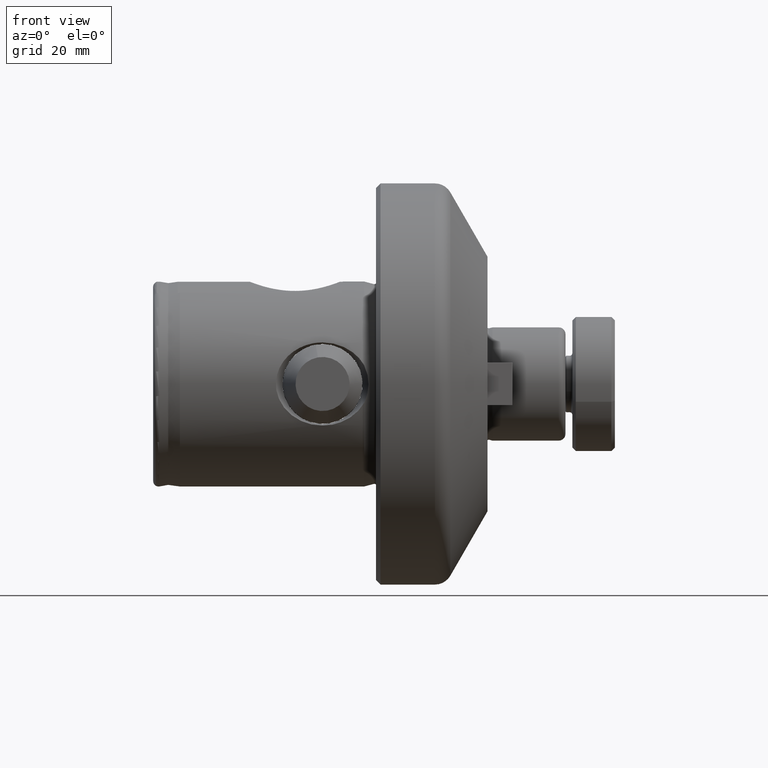
[diagram: clean part render]
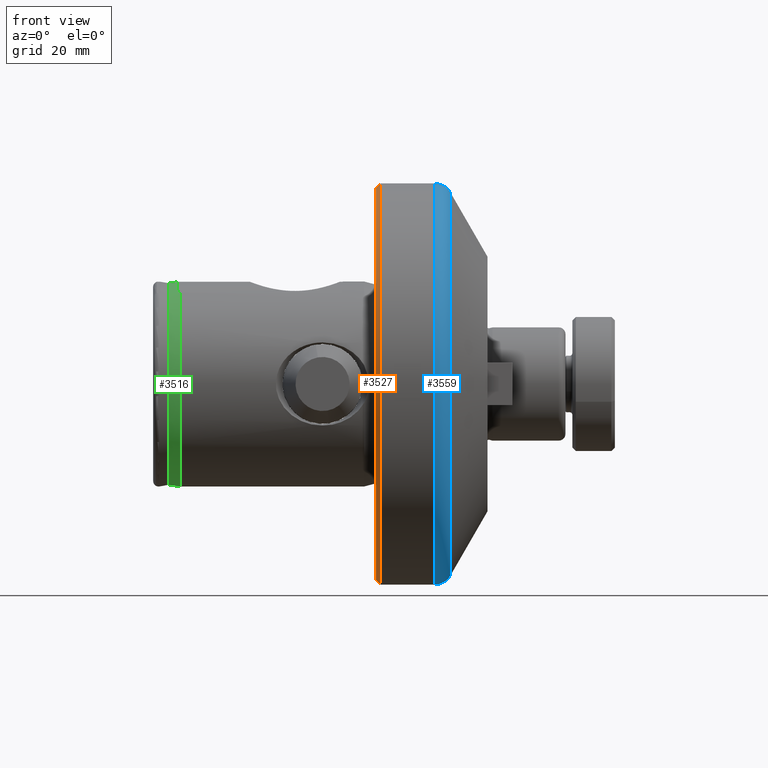
[diagram: same view with three faces highlighted in distinct colors, each labeled with its STEP entity id]
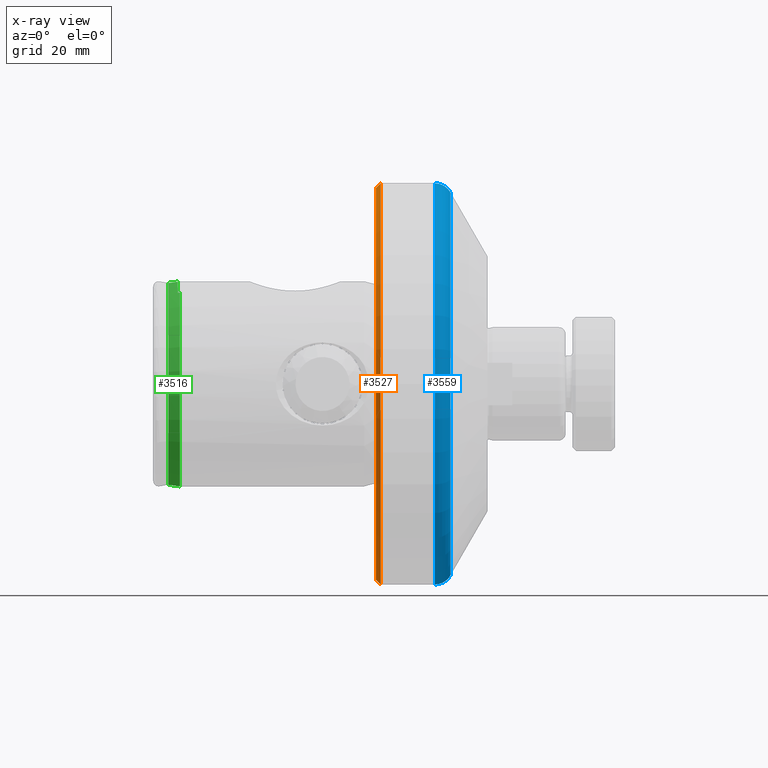
[diagram: x-ray of the same camera — body ghosted, the three highlighted faces saturated]
A machine part, front view with three faces highlighted in distinct colors.
The next image is the same camera in x-ray (body ghosted, the three faces saturated) — at least one of them is partly hidden behind the body in this view.
Their STEP definitions:

[orange] entity #3527 — the highlighted conical surface has half-angle 45 deg.
#628 = ORIENTED_EDGE ( 'NONE', *, *, #2507, .F. ) ;
#659 = ORIENTED_EDGE ( 'NONE', *, *, #2529, .T. ) ;
#701 = ORIENTED_EDGE ( 'NONE', *, *, #2441, .F. ) ;
#745 = ORIENTED_EDGE ( 'NONE', *, *, #2644, .T. ) ;
#1837 = VECTOR ( 'NONE', #4634, 1000.000000000000000 ) ;
#2441 = EDGE_CURVE ( 'NONE', #7696, #7667, #5189, .T. ) ;
#2507 = EDGE_CURVE ( 'NONE', #7667, #7832, #2546, .T. ) ;
#2529 = EDGE_CURVE ( 'NONE', #7840, #7832, #2599, .T. ) ;
#2546 = LINE ( 'NONE', #6354, #2549 ) ;
#2549 = VECTOR ( 'NONE', #6341, 1000.000000000000000 ) ;
#2599 = CIRCLE ( 'NONE', #5781, 45.00000000000000000 ) ;
#2644 = EDGE_CURVE ( 'NONE', #7696, #7840, #4557, .T. ) ;
#3374 = CARTESIAN_POINT ( 'NONE',  ( 50.99999999999999300, 0.0000000000000000000, 0.0000000000000000000 ) ) ;
#3527 = ADVANCED_FACE ( 'NONE', ( #8137 ), #8146, .T. ) ;
#3973 = CARTESIAN_POINT ( 'NONE',  ( 50.99999999999999300, 5.510910596163089600E-015, -45.00000000000000000 ) ) ;
#3989 = CARTESIAN_POINT ( 'NONE',  ( 50.99999999999999300, 0.0000000000000000000, 45.00000000000000000 ) ) ;
#4083 = CARTESIAN_POINT ( 'NONE',  ( 49.99999999999998600, 5.449678256205722000E-015, 44.00000000000000000 ) ) ;
#4093 = CARTESIAN_POINT ( 'NONE',  ( 49.99999999999998600, 0.0000000000000000000, -44.00000000000000000 ) ) ;
#4557 = LINE ( 'NONE', #4853, #1837 ) ;
#4634 = DIRECTION ( 'NONE',  ( 0.7071067811865475700, 0.0000000000000000000, -0.7071067811865474600 ) ) ;
#4853 = CARTESIAN_POINT ( 'NONE',  ( 50.99999999999999300, 0.0000000000000000000, -45.00000000000000000 ) ) ;
#5189 = CIRCLE ( 'NONE', #5734, 44.00000000000000000 ) ;
#5655 = DIRECTION ( 'NONE',  ( 0.0000000000000000000, 0.0000000000000000000, 1.000000000000000000 ) ) ;
#5657 = DIRECTION ( 'NONE',  ( -1.000000000000000000, -0.0000000000000000000, -0.0000000000000000000 ) ) ;
#5734 = AXIS2_PLACEMENT_3D ( 'NONE', #7468, #7466, #7486 ) ;
#5781 = AXIS2_PLACEMENT_3D ( 'NONE', #3374, #5657, #5655 ) ;
#6095 = AXIS2_PLACEMENT_3D ( 'NONE', #7344, #7346, #7239 ) ;
#6341 = DIRECTION ( 'NONE',  ( 0.7071067811865475700, 8.659560562354931600E-017, 0.7071067811865474600 ) ) ;
#6354 = CARTESIAN_POINT ( 'NONE',  ( 50.99999999999999300, 5.510910596163089600E-015, 45.00000000000000000 ) ) ;
#7239 = DIRECTION ( 'NONE',  ( 0.0000000000000000000, 0.0000000000000000000, -1.000000000000000000 ) ) ;
#7344 = CARTESIAN_POINT ( 'NONE',  ( 50.99999999999999300, 0.0000000000000000000, 0.0000000000000000000 ) ) ;
#7346 = DIRECTION ( 'NONE',  ( 1.000000000000000000, 0.0000000000000000000, 0.0000000000000000000 ) ) ;
#7466 = DIRECTION ( 'NONE',  ( -1.000000000000000000, -0.0000000000000000000, -0.0000000000000000000 ) ) ;
#7468 = CARTESIAN_POINT ( 'NONE',  ( 49.99999999999998600, 0.0000000000000000000, 0.0000000000000000000 ) ) ;
#7486 = DIRECTION ( 'NONE',  ( 0.0000000000000000000, 0.0000000000000000000, 1.000000000000000000 ) ) ;
#7667 = VERTEX_POINT ( 'NONE', #4083 ) ;
#7696 = VERTEX_POINT ( 'NONE', #4093 ) ;
#7832 = VERTEX_POINT ( 'NONE', #3989 ) ;
#7840 = VERTEX_POINT ( 'NONE', #3973 ) ;
#8137 = FACE_OUTER_BOUND ( 'NONE', #8389, .T. ) ;
#8146 = CONICAL_SURFACE ( 'NONE', #6095, 45.00000000000000000, 0.7853981633974482800 ) ;
#8389 = EDGE_LOOP ( 'NONE', ( #628, #701, #745, #659 ) ) ;

[blue] entity #3559 — the highlighted toroidal blend (fillet) surface has major radius 41 mm and minor (blend) radius 4 mm.
#94 = CIRCLE ( 'NONE', #5854, 43.00000000000000000 ) ;
#123 = CIRCLE ( 'NONE', #5866, 3.999999999999996400 ) ;
#569 = ORIENTED_EDGE ( 'NONE', *, *, #2761, .T. ) ;
#570 = ORIENTED_EDGE ( 'NONE', *, *, #2786, .F. ) ;
#658 = ORIENTED_EDGE ( 'NONE', *, *, #2916, .F. ) ;
#678 = ORIENTED_EDGE ( 'NONE', *, *, #2626, .T. ) ;
#2220 = CARTESIAN_POINT ( 'NONE',  ( 66.67172236693960500, 0.0000000000000000000, 0.0000000000000000000 ) ) ;
#2225 = DIRECTION ( 'NONE',  ( -1.000000000000000000, -0.0000000000000000000, -0.0000000000000000000 ) ) ;
#2229 = DIRECTION ( 'NONE',  ( 0.0000000000000000000, 0.0000000000000000000, 1.000000000000000000 ) ) ;
#2278 = DIRECTION ( 'NONE',  ( 0.0000000000000000000, -1.224646799147353500E-016, 1.000000000000000000 ) ) ;
#2279 = DIRECTION ( 'NONE',  ( -0.0000000000000000000, 1.000000000000000000, 1.224646799147353200E-016 ) ) ;
#2281 = CARTESIAN_POINT ( 'NONE',  ( 63.20762075180186200, 5.021051876504148200E-015, -40.99999999999999300 ) ) ;
#2626 = EDGE_CURVE ( 'NONE', #7615, #7647, #2749, .T. ) ;
#2749 = CIRCLE ( 'NONE', #5809, 3.999999999999996400 ) ;
#2761 = EDGE_CURVE ( 'NONE', #7918, #7615, #94, .T. ) ;
#2786 = EDGE_CURVE ( 'NONE', #7918, #7538, #123, .T. ) ;
#2916 = EDGE_CURVE ( 'NONE', #7538, #7647, #6506, .T. ) ;
#3228 = DIRECTION ( 'NONE',  ( 0.0000000000000000000, 0.0000000000000000000, 1.000000000000000000 ) ) ;
#3230 = DIRECTION ( 'NONE',  ( -1.000000000000000000, -0.0000000000000000000, -0.0000000000000000000 ) ) ;
#3234 = CARTESIAN_POINT ( 'NONE',  ( 63.20762075180186200, 0.0000000000000000000, 0.0000000000000000000 ) ) ;
#3559 = ADVANCED_FACE ( 'NONE', ( #8200 ), #8202, .T. ) ;
#4120 = CARTESIAN_POINT ( 'NONE',  ( 66.67172236693960500, 0.0000000000000000000, 43.00000000000000000 ) ) ;
#4138 = CARTESIAN_POINT ( 'NONE',  ( 63.20762075180186200, 0.0000000000000000000, 45.00000000000000000 ) ) ;
#4435 = CARTESIAN_POINT ( 'NONE',  ( 66.67172236693960500, 5.388445916248352800E-015, -43.00000000000000000 ) ) ;
#4695 = DIRECTION ( 'NONE',  ( 0.0000000000000000000, 0.0000000000000000000, -1.000000000000000000 ) ) ;
#4698 = CARTESIAN_POINT ( 'NONE',  ( 63.20762075180186200, 0.0000000000000000000, 40.99999999999999300 ) ) ;
#4788 = DIRECTION ( 'NONE',  ( 0.0000000000000000000, -1.000000000000000000, 0.0000000000000000000 ) ) ;
#5019 = CARTESIAN_POINT ( 'NONE',  ( 63.20762075180186200, 5.510910596163089600E-015, -45.00000000000000000 ) ) ;
#5809 = AXIS2_PLACEMENT_3D ( 'NONE', #4698, #4788, #4695 ) ;
#5854 = AXIS2_PLACEMENT_3D ( 'NONE', #2220, #2225, #2229 ) ;
#5866 = AXIS2_PLACEMENT_3D ( 'NONE', #2281, #2279, #2278 ) ;
#5942 = AXIS2_PLACEMENT_3D ( 'NONE', #3234, #3230, #3228 ) ;
#6097 = AXIS2_PLACEMENT_3D ( 'NONE', #7419, #7229, #7424 ) ;
#6506 = CIRCLE ( 'NONE', #5942, 45.00000000000000000 ) ;
#7229 = DIRECTION ( 'NONE',  ( -1.000000000000000000, -0.0000000000000000000, -0.0000000000000000000 ) ) ;
#7419 = CARTESIAN_POINT ( 'NONE',  ( 63.20762075180186200, 0.0000000000000000000, 0.0000000000000000000 ) ) ;
#7424 = DIRECTION ( 'NONE',  ( 0.0000000000000000000, 0.0000000000000000000, 1.000000000000000000 ) ) ;
#7538 = VERTEX_POINT ( 'NONE', #5019 ) ;
#7615 = VERTEX_POINT ( 'NONE', #4120 ) ;
#7647 = VERTEX_POINT ( 'NONE', #4138 ) ;
#7918 = VERTEX_POINT ( 'NONE', #4435 ) ;
#8069 = EDGE_LOOP ( 'NONE', ( #570, #569, #678, #658 ) ) ;
#8200 = FACE_OUTER_BOUND ( 'NONE', #8069, .T. ) ;
#8202 = TOROIDAL_SURFACE ( 'NONE', #6097, 40.99999999999999300, 3.999999999999997300 ) ;

[green] entity #3516 — the highlighted conical surface has half-angle 8 deg.
#164 = CARTESIAN_POINT ( 'NONE',  ( 5.720682030750331200, -10.50000000000000000, 20.41925033627581200 ) ) ;
#171 = CARTESIAN_POINT ( 'NONE',  ( 6.000000000000000000, -10.50000000000000000, 20.46338192968110900 ) ) ;
#178 = CARTESIAN_POINT ( 'NONE',  ( 5.666125903117054100, -10.50000000000000000, 20.41062864959544100 ) ) ;
#179 = CARTESIAN_POINT ( 'NONE',  ( 5.813787508864462200, -10.50000000000000000, 20.43396410529406300 ) ) ;
#181 = CARTESIAN_POINT ( 'NONE',  ( 5.906893499824387400, -10.50000000000000000, 20.44867462949950000 ) ) ;
#201 = CARTESIAN_POINT ( 'NONE',  ( 5.611569951539120600, -10.50000000000000000, 20.40200584880143400 ) ) ;
#290 = DIRECTION ( 'NONE',  ( 0.0000000000000000000, 0.0000000000000000000, 1.000000000000000000 ) ) ;
#298 = DIRECTION ( 'NONE',  ( -1.000000000000000000, -0.0000000000000000000, -0.0000000000000000000 ) ) ;
#299 = CARTESIAN_POINT ( 'NONE',  ( 6.000000000000000000, 0.0000000000000000000, 0.0000000000000000000 ) ) ;
#415 = CARTESIAN_POINT ( 'NONE',  ( 5.557014176752583800, -10.49999999999999100, 20.39338192968112700 ) ) ;
#724 = ORIENTED_EDGE ( 'NONE', *, *, #2812, .F. ) ;
#729 = ORIENTED_EDGE ( 'NONE', *, *, #2841, .T. ) ;
#730 = ORIENTED_EDGE ( 'NONE', *, *, #2445, .F. ) ;
#731 = ORIENTED_EDGE ( 'NONE', *, *, #2956, .F. ) ;
#733 = ORIENTED_EDGE ( 'NONE', *, *, #2882, .F. ) ;
#735 = ORIENTED_EDGE ( 'NONE', *, *, #2450, .T. ) ;
#964 = CIRCLE ( 'NONE', #5896, 22.99999999999998600 ) ;
#1815 = FACE_OUTER_BOUND ( 'NONE', #8051, .T. ) ;
#1824 = CONICAL_SURFACE ( 'NONE', #6084, 22.99999999999998600, 0.1396263401595466700 ) ;
#1853 = CARTESIAN_POINT ( 'NONE',  ( 5.501924119433200900, -1.616015774491660200E-013, 22.93000000000000000 ) ) ;
#1989 = B_SPLINE_CURVE_WITH_KNOTS ( 'NONE', 3,
 ( #415, #201, #178, #164, #179, #181, #171 ),
 .UNSPECIFIED., .F., .F.,
 ( 4, 3, 4 ),
 ( 0.006480747183685178400, 0.006646446674954806800, 0.006929229401062362400 ),
 .UNSPECIFIED. ) ;
#2002 = B_SPLINE_CURVE_WITH_KNOTS ( 'NONE', 3,
 ( #3338, #3335, #3334, #3332, #3329, #3331, #3330, #3326, #3328, #3327 ),
 .UNSPECIFIED., .F., .F.,
 ( 4, 2, 2, 2, 4 ),
 ( 0.01084930892373658900, 0.01355812517696584500, 0.01491253330358047400, 0.01626694143019510200, 0.02168457393665361400 ),
 .UNSPECIFIED. ) ;
#2445 = EDGE_CURVE ( 'NONE', #7717, #7604, #5192, .T. ) ;
#2450 = EDGE_CURVE ( 'NONE', #7543, #7844, #5210, .T. ) ;
#2812 = EDGE_CURVE ( 'NONE', #7924, #7851, #1989, .T. ) ;
#2841 = EDGE_CURVE ( 'NONE', #7844, #7851, #964, .T. ) ;
#2882 = EDGE_CURVE ( 'NONE', #7604, #7924, #2002, .T. ) ;
#2956 = EDGE_CURVE ( 'NONE', #7543, #7717, #6560, .T. ) ;
#3110 = DIRECTION ( 'NONE',  ( 0.0000000000000000000, 0.0000000000000000000, 1.000000000000000000 ) ) ;
#3111 = DIRECTION ( 'NONE',  ( -1.000000000000000000, -0.0000000000000000000, -0.0000000000000000000 ) ) ;
#3120 = CARTESIAN_POINT ( 'NONE',  ( 3.387372485071338300, 0.0000000000000000000, 0.0000000000000000000 ) ) ;
#3326 = CARTESIAN_POINT ( 'NONE',  ( 5.525156729224059800, -7.168370762833353300, 21.86037261288042500 ) ) ;
#3327 = CARTESIAN_POINT ( 'NONE',  ( 5.557014176752583800, -10.49999999999999100, 20.39338192968112700 ) ) ;
#3328 = CARTESIAN_POINT ( 'NONE',  ( 5.538855646650372200, -8.870238849765906200, 21.22963138914300200 ) ) ;
#3329 = CARTESIAN_POINT ( 'NONE',  ( 5.507998335330698000, -3.604668019525830500, 22.65035556375866600 ) ) ;
#3330 = CARTESIAN_POINT ( 'NONE',  ( 5.513540485447443000, -4.952053985602630000, 22.39519719965759500 ) ) ;
#3331 = CARTESIAN_POINT ( 'NONE',  ( 5.511491858666889100, -4.502935528960202700, 22.48951595439582700 ) ) ;
#3332 = CARTESIAN_POINT ( 'NONE',  ( 5.506549167345434100, -3.155097331512935400, 22.71707309116323600 ) ) ;
#3334 = CARTESIAN_POINT ( 'NONE',  ( 5.503076247807878300, -1.805101285263363000, 22.87695984838262200 ) ) ;
#3335 = CARTESIAN_POINT ( 'NONE',  ( 5.501924119433202700, -0.9033963053425111400, 22.93000000000000000 ) ) ;
#3338 = CARTESIAN_POINT ( 'NONE',  ( 5.501924119433200900, -1.616015774491660200E-013, 22.93000000000000000 ) ) ;
#3516 = ADVANCED_FACE ( 'NONE', ( #1815 ), #1824, .T. ) ;
#3977 = CARTESIAN_POINT ( 'NONE',  ( 6.000000000000000000, 2.816687638038911200E-015, -22.99999999999998600 ) ) ;
#4075 = CARTESIAN_POINT ( 'NONE',  ( 3.387372485071338300, 2.794204295300892000E-015, 22.63281914828547800 ) ) ;
#4421 = CARTESIAN_POINT ( 'NONE',  ( 5.557014176752583800, -10.49999999999999100, 20.39338192968112700 ) ) ;
#4477 = CARTESIAN_POINT ( 'NONE',  ( 6.000000000000000000, -10.50000000000000000, 20.46338192968110900 ) ) ;
#5014 = CARTESIAN_POINT ( 'NONE',  ( 3.387372485071338300, 0.0000000000000000000, -22.63281914828547800 ) ) ;
#5192 = LINE ( 'NONE', #7475, #5198 ) ;
#5198 = VECTOR ( 'NONE', #7465, 999.9999999999998900 ) ;
#5210 = LINE ( 'NONE', #7461, #5216 ) ;
#5216 = VECTOR ( 'NONE', #7476, 999.9999999999998900 ) ;
#5896 = AXIS2_PLACEMENT_3D ( 'NONE', #299, #298, #290 ) ;
#5963 = AXIS2_PLACEMENT_3D ( 'NONE', #3120, #3111, #3110 ) ;
#6084 = AXIS2_PLACEMENT_3D ( 'NONE', #7028, #6979, #7027 ) ;
#6560 = CIRCLE ( 'NONE', #5963, 22.63281914828547800 ) ;
#6979 = DIRECTION ( 'NONE',  ( 1.000000000000000000, 0.0000000000000000000, 0.0000000000000000000 ) ) ;
#7027 = DIRECTION ( 'NONE',  ( 0.0000000000000000000, 0.0000000000000000000, -1.000000000000000000 ) ) ;
#7028 = CARTESIAN_POINT ( 'NONE',  ( 6.000000000000000000, 0.0000000000000000000, 0.0000000000000000000 ) ) ;
#7461 = CARTESIAN_POINT ( 'NONE',  ( 6.000000000000000000, 0.0000000000000000000, -22.99999999999998600 ) ) ;
#7465 = DIRECTION ( 'NONE',  ( 0.9902680687415703600, 1.704378926181559700E-017, 0.1391731009600657400 ) ) ;
#7475 = CARTESIAN_POINT ( 'NONE',  ( 6.000000000000000000, 2.816687638038910800E-015, 22.99999999999998600 ) ) ;
#7476 = DIRECTION ( 'NONE',  ( 0.9902680687415703600, 0.0000000000000000000, -0.1391731009600657400 ) ) ;
#7543 = VERTEX_POINT ( 'NONE', #5014 ) ;
#7604 = VERTEX_POINT ( 'NONE', #1853 ) ;
#7717 = VERTEX_POINT ( 'NONE', #4075 ) ;
#7844 = VERTEX_POINT ( 'NONE', #3977 ) ;
#7851 = VERTEX_POINT ( 'NONE', #4477 ) ;
#7924 = VERTEX_POINT ( 'NONE', #4421 ) ;
#8051 = EDGE_LOOP ( 'NONE', ( #730, #731, #735, #729, #724, #733 ) ) ;